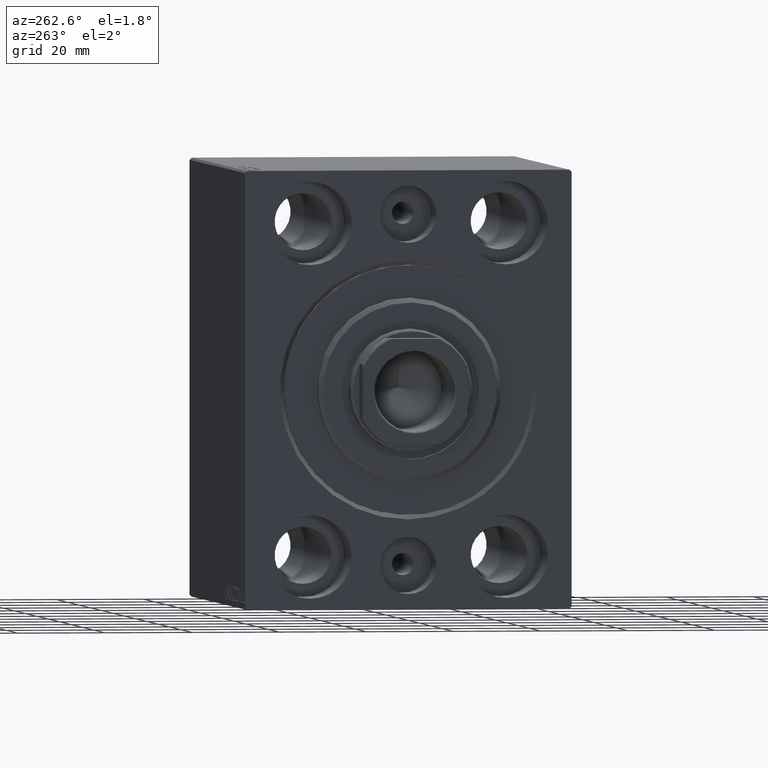
[diagram: clean part render]
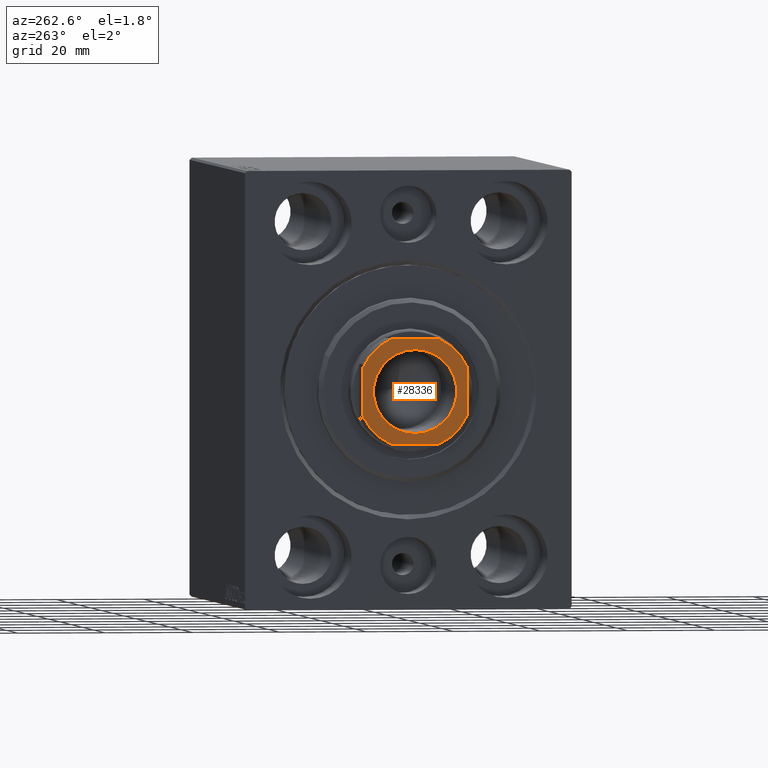
[diagram: same view with one face highlighted and labeled with its STEP entity id]
A machine part, auxiliary view. The second image highlights one B-rep face of the part: STEP entity #28336.
In plain terms, the highlighted planar face has unit normal (-1, 0, 0).
Its self-contained STEP definition (entity closure, byte-faithful):
#69 = CIRCLE ( 'NONE', #18429, 13.20000000000002238 ) ;
#929 = EDGE_CURVE ( 'NONE', #33783, #36364, #21962, .T. ) ;
#1409 = CIRCLE ( 'NONE', #38230, 9.549999999999988276 ) ;
#2565 = FACE_BOUND ( 'NONE', #27512, .T. ) ;
#2848 = VERTEX_POINT ( 'NONE', #13177 ) ;
#3234 = LINE ( 'NONE', #10082, #33412 ) ;
#4571 = EDGE_CURVE ( 'NONE', #16215, #2848, #13583, .T. ) ;
#4724 = AXIS2_PLACEMENT_3D ( 'NONE', #41747, #31116, #21129 ) ;
#5010 = CARTESIAN_POINT ( 'NONE',  ( -11.99999999999999822, -12.00000000000000355, 96.00000000000000000 ) ) ;
#5226 = DIRECTION ( 'NONE',  ( 1.000000000000000000, 0.000000000000000000, 0.000000000000000000 ) ) ;
#5594 = CARTESIAN_POINT ( 'NONE',  ( -5.499090833947052559, -12.00000000000000355, 96.00000000000000000 ) ) ;
#5868 = LINE ( 'NONE', #11653, #18319 ) ;
#6160 = VERTEX_POINT ( 'NONE', #43015 ) ;
#6497 = ORIENTED_EDGE ( 'NONE', *, *, #42941, .T. ) ;
#6839 = DIRECTION ( 'NONE',  ( 1.000000000000000000, 0.000000000000000000, 0.000000000000000000 ) ) ;
#7335 = DIRECTION ( 'NONE',  ( 1.000000000000000000, 0.000000000000000000, 0.000000000000000000 ) ) ;
#9119 = VECTOR ( 'NONE', #5226, 1000.000000000000000 ) ;
#9408 = VERTEX_POINT ( 'NONE', #35797 ) ;
#9852 = DIRECTION ( 'NONE',  ( -0.000000000000000000, 0.000000000000000000, 1.000000000000000000 ) ) ;
#10082 = CARTESIAN_POINT ( 'NONE',  ( -12.00000000000000355, 11.99999999999999645, 96.00000000000000000 ) ) ;
#10393 = AXIS2_PLACEMENT_3D ( 'NONE', #43348, #9852, #40237 ) ;
#11653 = CARTESIAN_POINT ( 'NONE',  ( -12.00000000000000355, 11.99999999999999645, 96.00000000000000000 ) ) ;
#11935 = CIRCLE ( 'NONE', #38169, 9.549999999999988276 ) ;
#11972 = VERTEX_POINT ( 'NONE', #5594 ) ;
#12502 = EDGE_CURVE ( 'NONE', #16806, #11972, #69, .T. ) ;
#12611 = CARTESIAN_POINT ( 'NONE',  ( -5.499090833947067658, 11.99999999999999645, 96.00000000000000000 ) ) ;
#12695 = CARTESIAN_POINT ( 'NONE',  ( 0.000000000000000000, 0.000000000000000000, 96.00000000000000000 ) ) ;
#12976 = DIRECTION ( 'NONE',  ( 1.000000000000000000, 0.000000000000000000, 0.000000000000000000 ) ) ;
#13177 = CARTESIAN_POINT ( 'NONE',  ( 12.00000000000000000, -5.499090833947034795, 96.00000000000000000 ) ) ;
#13583 = CIRCLE ( 'NONE', #40488, 13.20000000000000995 ) ;
#14280 = VERTEX_POINT ( 'NONE', #35285 ) ;
#15235 = ORIENTED_EDGE ( 'NONE', *, *, #34477, .T. ) ;
#15656 = CARTESIAN_POINT ( 'NONE',  ( -12.00000000000000178, 5.499090833947057000, 96.00000000000000000 ) ) ;
#16215 = VERTEX_POINT ( 'NONE', #28223 ) ;
#16478 = DIRECTION ( 'NONE',  ( -2.168404344971008868E-16, 1.000000000000000000, -0.000000000000000000 ) ) ;
#16745 = CARTESIAN_POINT ( 'NONE',  ( 0.000000000000000000, 0.000000000000000000, 96.00000000000000000 ) ) ;
#16806 = VERTEX_POINT ( 'NONE', #21620 ) ;
#16821 = CARTESIAN_POINT ( 'NONE',  ( 0.000000000000000000, 0.000000000000000000, 96.00000000000000000 ) ) ;
#17813 = ORIENTED_EDGE ( 'NONE', *, *, #4571, .T. ) ;
#18319 = VECTOR ( 'NONE', #22079, 1000.000000000000000 ) ;
#18429 = AXIS2_PLACEMENT_3D ( 'NONE', #36505, #19221, #30310 ) ;
#19221 = DIRECTION ( 'NONE',  ( -0.000000000000000000, 0.000000000000000000, 1.000000000000000000 ) ) ;
#21129 = DIRECTION ( 'NONE',  ( 1.000000000000000000, 0.000000000000000000, 0.000000000000000000 ) ) ;
#21620 = CARTESIAN_POINT ( 'NONE',  ( -12.00000000000000000, -5.499090833947057888, 96.00000000000000000 ) ) ;
#21962 = CIRCLE ( 'NONE', #28375, 13.20000000000002238 ) ;
#22079 = DIRECTION ( 'NONE',  ( -1.000000000000000000, -0.000000000000000000, -0.000000000000000000 ) ) ;
#22130 = EDGE_LOOP ( 'NONE', ( #26485, #41734, #33408, #32409, #6497, #31757, #37068, #17813 ) ) ;
#23340 = DIRECTION ( 'NONE',  ( 0.000000000000000000, -0.000000000000000000, -1.000000000000000000 ) ) ;
#23941 = EDGE_CURVE ( 'NONE', #9408, #14280, #42933, .T. ) ;
#23990 = CARTESIAN_POINT ( 'NONE',  ( 0.000000000000000000, 0.000000000000000000, 96.00000000000000000 ) ) ;
#26107 = CARTESIAN_POINT ( 'NONE',  ( 9.549999999999988276, 0.000000000000000000, 96.00000000000000000 ) ) ;
#26485 = ORIENTED_EDGE ( 'NONE', *, *, #27997, .T. ) ;
#26855 = ORIENTED_EDGE ( 'NONE', *, *, #36873, .T. ) ;
#27512 = EDGE_LOOP ( 'NONE', ( #26855, #15235 ) ) ;
#27997 = EDGE_CURVE ( 'NONE', #2848, #9408, #35032, .T. ) ;
#28223 = CARTESIAN_POINT ( 'NONE',  ( 5.499090833947025914, -12.00000000000000355, 96.00000000000000000 ) ) ;
#28336 = ADVANCED_FACE ( 'NONE', ( #2565, #33823 ), #33605, .T. ) ;
#28375 = AXIS2_PLACEMENT_3D ( 'NONE', #16745, #43359, #12976 ) ;
#30310 = DIRECTION ( 'NONE',  ( 1.000000000000000000, 0.000000000000000000, 0.000000000000000000 ) ) ;
#31116 = DIRECTION ( 'NONE',  ( -0.000000000000000000, 0.000000000000000000, 1.000000000000000000 ) ) ;
#31713 = VECTOR ( 'NONE', #16478, 1000.000000000000000 ) ;
#31757 = ORIENTED_EDGE ( 'NONE', *, *, #12502, .T. ) ;
#32409 = ORIENTED_EDGE ( 'NONE', *, *, #929, .T. ) ;
#33408 = ORIENTED_EDGE ( 'NONE', *, *, #35084, .T. ) ;
#33412 = VECTOR ( 'NONE', #40683, 1000.000000000000000 ) ;
#33605 = PLANE ( 'NONE',  #10393 ) ;
#33783 = VERTEX_POINT ( 'NONE', #12611 ) ;
#33823 = FACE_OUTER_BOUND ( 'NONE', #22130, .T. ) ;
#34477 = EDGE_CURVE ( 'NONE', #6160, #41933, #11935, .T. ) ;
#35032 = LINE ( 'NONE', #37095, #31713 ) ;
#35084 = EDGE_CURVE ( 'NONE', #14280, #33783, #5868, .T. ) ;
#35100 = EDGE_CURVE ( 'NONE', #11972, #16215, #42900, .T. ) ;
#35285 = CARTESIAN_POINT ( 'NONE',  ( 5.499090833947041901, 11.99999999999999645, 96.00000000000000000 ) ) ;
#35797 = CARTESIAN_POINT ( 'NONE',  ( 11.99999999999999645, 5.499090833947039236, 96.00000000000000000 ) ) ;
#36364 = VERTEX_POINT ( 'NONE', #15656 ) ;
#36505 = CARTESIAN_POINT ( 'NONE',  ( 0.000000000000000000, 0.000000000000000000, 96.00000000000000000 ) ) ;
#36851 = DIRECTION ( 'NONE',  ( 1.000000000000000000, 0.000000000000000000, 0.000000000000000000 ) ) ;
#36873 = EDGE_CURVE ( 'NONE', #41933, #6160, #1409, .T. ) ;
#37068 = ORIENTED_EDGE ( 'NONE', *, *, #35100, .T. ) ;
#37095 = CARTESIAN_POINT ( 'NONE',  ( 11.99999999999999645, 11.99999999999999645, 96.00000000000000000 ) ) ;
#37498 = DIRECTION ( 'NONE',  ( 0.000000000000000000, -0.000000000000000000, -1.000000000000000000 ) ) ;
#38169 = AXIS2_PLACEMENT_3D ( 'NONE', #23990, #37498, #7335 ) ;
#38230 = AXIS2_PLACEMENT_3D ( 'NONE', #12695, #23340, #36851 ) ;
#40237 = DIRECTION ( 'NONE',  ( 1.000000000000000000, 0.000000000000000000, 0.000000000000000000 ) ) ;
#40488 = AXIS2_PLACEMENT_3D ( 'NONE', #16821, #40555, #6839 ) ;
#40555 = DIRECTION ( 'NONE',  ( -0.000000000000000000, 0.000000000000000000, 1.000000000000000000 ) ) ;
#40683 = DIRECTION ( 'NONE',  ( 2.168404344971008868E-16, -1.000000000000000000, 0.000000000000000000 ) ) ;
#41734 = ORIENTED_EDGE ( 'NONE', *, *, #23941, .T. ) ;
#41747 = CARTESIAN_POINT ( 'NONE',  ( 0.000000000000000000, 0.000000000000000000, 96.00000000000000000 ) ) ;
#41933 = VERTEX_POINT ( 'NONE', #26107 ) ;
#42900 = LINE ( 'NONE', #5010, #9119 ) ;
#42933 = CIRCLE ( 'NONE', #4724, 13.20000000000000995 ) ;
#42941 = EDGE_CURVE ( 'NONE', #36364, #16806, #3234, .T. ) ;
#43015 = CARTESIAN_POINT ( 'NONE',  ( -9.549999999999988276, 1.169537693185720980E-15, 96.00000000000000000 ) ) ;
#43348 = CARTESIAN_POINT ( 'NONE',  ( 0.000000000000000000, 0.000000000000000000, 96.00000000000000000 ) ) ;
#43359 = DIRECTION ( 'NONE',  ( -0.000000000000000000, 0.000000000000000000, 1.000000000000000000 ) ) ;